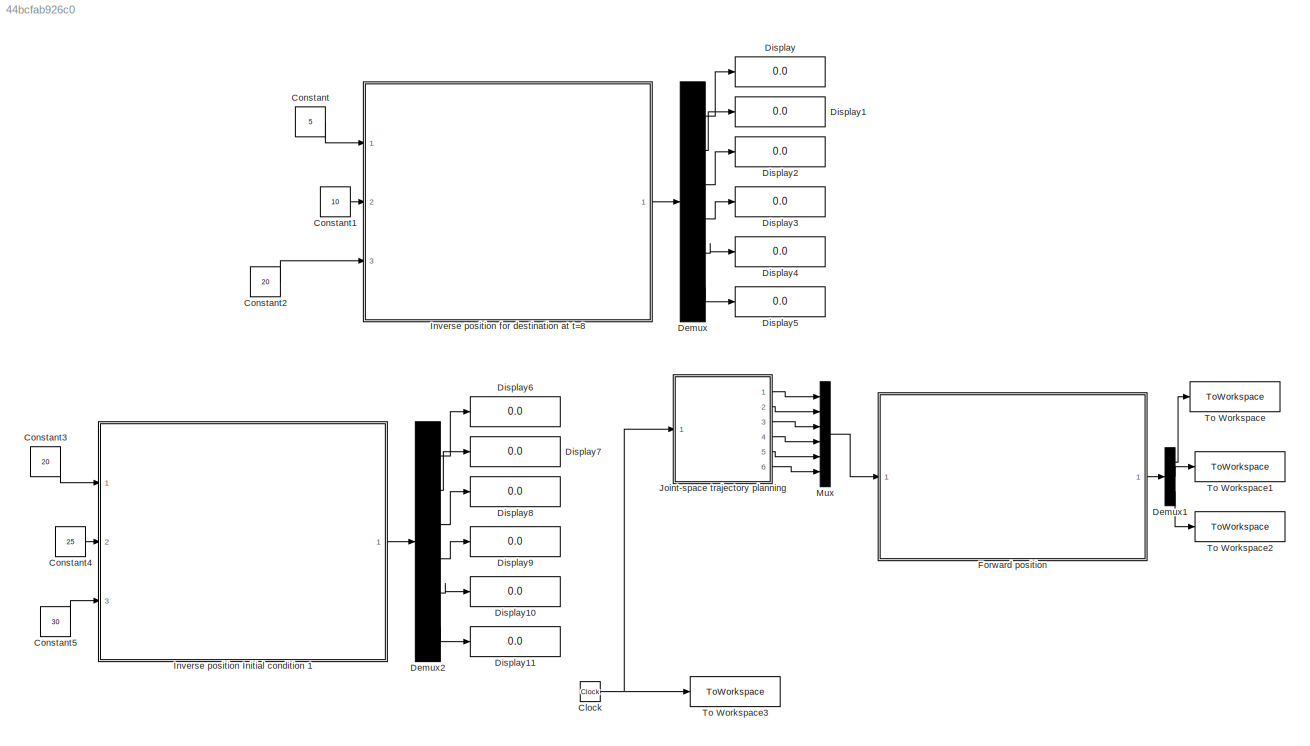
MODEL slx_44bcfab926c0
KIND model
CONFIG AbsTol = auto
CONFIG EnableMultiTasking = off
CONFIG FixedStep = 0.01
CONFIG MaxStep = auto
CONFIG MinStep = auto
CONFIG RelTol = 1e-3
CONFIG SampleTimeConstraint = Unconstrained
CONFIG Solver = FixedStepAuto
CONFIG SolverName = FixedStepAuto
CONFIG StartTime = 0.0
CONFIG StopTime = 8
BLOCK [Clock] Clock
BLOCK [Constant] Constant
  Value = 5
BLOCK [Constant] Constant1
  Value = 10
BLOCK [Constant] Constant2
  Value = 20
BLOCK [Constant] Constant3
  Value = 20
BLOCK [Constant] Constant4
  Value = 25
BLOCK [Constant] Constant5
  Value = 30
BLOCK [Demux] Demux
  DisplayOption = bar
  Outputs = 6
  Ports = [1, 6]
BLOCK [Demux] Demux1
  DisplayOption = bar
  Outputs = 3
  Ports = [1, 3]
BLOCK [Demux] Demux2
  DisplayOption = bar
  Outputs = 6
  Ports = [1, 6]
BLOCK [Display] Display
  Decimation = 1
  Ports = [1]
BLOCK [Display] Display1
  Decimation = 1
  Ports = [1]
BLOCK [Display] Display10
  Decimation = 1
  Ports = [1]
BLOCK [Display] Display11
  Decimation = 1
  Ports = [1]
BLOCK [Display] Display2
  Decimation = 1
  Ports = [1]
BLOCK [Display] Display3
  Decimation = 1
  Ports = [1]
BLOCK [Display] Display4
  Decimation = 1
  Ports = [1]
BLOCK [Display] Display5
  Decimation = 1
  Ports = [1]
BLOCK [Display] Display6
  Decimation = 1
  Ports = [1]
BLOCK [Display] Display7
  Decimation = 1
  Ports = [1]
BLOCK [Display] Display8
  Decimation = 1
  Ports = [1]
BLOCK [Display] Display9
  Decimation = 1
  Ports = [1]
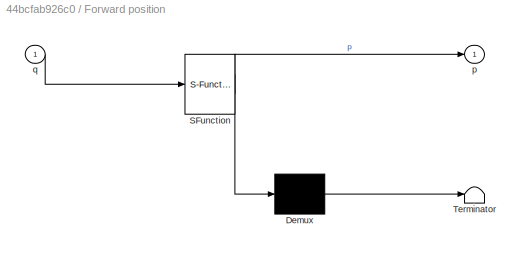
BLOCK [SubSystem] Forward position 
  ErrorFcn = Stateflow.Translate.translate
  PermitHierarchicalResolution = ExplicitOnly
  Ports = [1, 1]
  RequestExecContextInheritance = off
  SFBlockType = MATLAB Function
  TreatAsAtomicUnit = on
BLOCK [Demux] Forward position / Demux 
  Outputs = 1
  Ports = [1, 1]
BLOCK [S-Function] Forward position / SFunction 
  EnableBusSupport = on
  FunctionName = sf_sfun
  PortCounts = [1 2]
  Ports = [1, 2]
  SFcnIsStateOwnerBlock = off
  SFunctionDeploymentMode = off
  Tag = Stateflow S-Function 3
BLOCK [Terminator] Forward position / Terminator 
BLOCK [Outport] Forward position /p
  IconDisplay = Port number
  VectorParamsAs1DForOutWhenUnconnected = off
BLOCK [Inport] Forward position /q
  IconDisplay = Port number
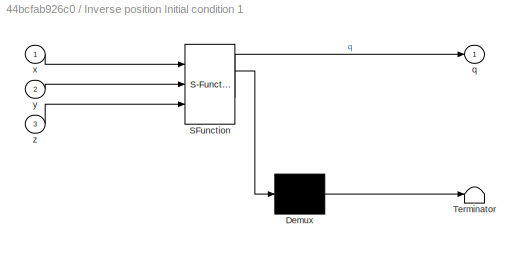
BLOCK [SubSystem] Inverse position Initial condition 1
  ErrorFcn = Stateflow.Translate.translate
  PermitHierarchicalResolution = ExplicitOnly
  Ports = [3, 1]
  RequestExecContextInheritance = off
  SFBlockType = MATLAB Function
  TreatAsAtomicUnit = on
BLOCK [Demux] Inverse position Initial condition 1/ Demux 
  Outputs = 1
  Ports = [1, 1]
BLOCK [S-Function] Inverse position Initial condition 1/ SFunction 
  EnableBusSupport = on
  FunctionName = sf_sfun
  PortCounts = [3 2]
  Ports = [3, 2]
  SFcnIsStateOwnerBlock = off
  SFunctionDeploymentMode = off
  Tag = Stateflow S-Function 4
BLOCK [Terminator] Inverse position Initial condition 1/ Terminator 
BLOCK [Outport] Inverse position Initial condition 1/q
  IconDisplay = Port number
  VectorParamsAs1DForOutWhenUnconnected = off
BLOCK [Inport] Inverse position Initial condition 1/x
  IconDisplay = Port number
BLOCK [Inport] Inverse position Initial condition 1/y
  IconDisplay = Port number
  Port = 2
BLOCK [Inport] Inverse position Initial condition 1/z
  IconDisplay = Port number
  Port = 3
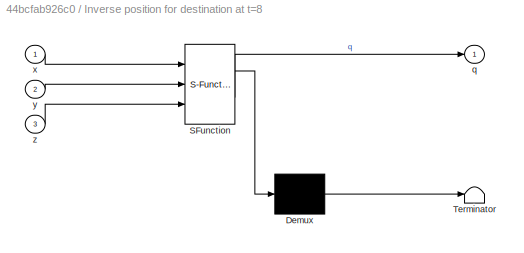
BLOCK [SubSystem] Inverse position for destination at t=8 
  ErrorFcn = Stateflow.Translate.translate
  PermitHierarchicalResolution = ExplicitOnly
  Ports = [3, 1]
  RequestExecContextInheritance = off
  SFBlockType = MATLAB Function
  TreatAsAtomicUnit = on
BLOCK [Demux] Inverse position for destination at t=8 / Demux 
  Outputs = 1
  Ports = [1, 1]
BLOCK [S-Function] Inverse position for destination at t=8 / SFunction 
  EnableBusSupport = on
  FunctionName = sf_sfun
  PortCounts = [3 2]
  Ports = [3, 2]
  SFcnIsStateOwnerBlock = off
  SFunctionDeploymentMode = off
  Tag = Stateflow S-Function 1
BLOCK [Terminator] Inverse position for destination at t=8 / Terminator 
BLOCK [Outport] Inverse position for destination at t=8 /q
  IconDisplay = Port number
  VectorParamsAs1DForOutWhenUnconnected = off
BLOCK [Inport] Inverse position for destination at t=8 /x
  IconDisplay = Port number
BLOCK [Inport] Inverse position for destination at t=8 /y
  IconDisplay = Port number
  Port = 2
BLOCK [Inport] Inverse position for destination at t=8 /z
  IconDisplay = Port number
  Port = 3
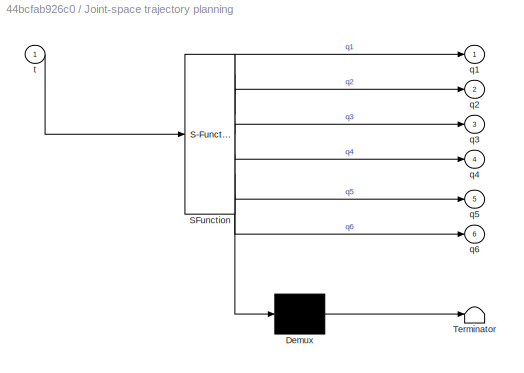
BLOCK [SubSystem] Joint-space trajectory planning 
  ErrorFcn = Stateflow.Translate.translate
  PermitHierarchicalResolution = ExplicitOnly
  Ports = [1, 6]
  RequestExecContextInheritance = off
  SFBlockType = MATLAB Function
  TreatAsAtomicUnit = on
BLOCK [Demux] Joint-space trajectory planning / Demux 
  Outputs = 1
  Ports = [1, 1]
BLOCK [S-Function] Joint-space trajectory planning / SFunction 
  EnableBusSupport = on
  FunctionName = sf_sfun
  PortCounts = [1 7]
  Ports = [1, 7]
  SFcnIsStateOwnerBlock = off
  SFunctionDeploymentMode = off
  Tag = Stateflow S-Function 2
BLOCK [Terminator] Joint-space trajectory planning / Terminator 
BLOCK [Outport] Joint-space trajectory planning /q1
  IconDisplay = Port number
BLOCK [Outport] Joint-space trajectory planning /q2
  IconDisplay = Port number
  Port = 2
BLOCK [Outport] Joint-space trajectory planning /q3
  IconDisplay = Port number
  Port = 3
BLOCK [Outport] Joint-space trajectory planning /q4
  IconDisplay = Port number
  Port = 4
BLOCK [Outport] Joint-space trajectory planning /q5
  IconDisplay = Port number
  Port = 5
BLOCK [Outport] Joint-space trajectory planning /q6
  IconDisplay = Port number
  Port = 6
BLOCK [Inport] Joint-space trajectory planning /t
  IconDisplay = Port number
BLOCK [Mux] Mux
  DisplayOption = bar
  Inputs = 6
  Ports = [6, 1]
BLOCK [ToWorkspace] To Workspace
  FixptAsFi = on
  MaxDataPoints = inf
  Ports = [1]
  SampleTime = -1
  VariableName = x
BLOCK [ToWorkspace] To Workspace1
  FixptAsFi = on
  MaxDataPoints = inf
  Ports = [1]
  SampleTime = -1
  VariableName = y
BLOCK [ToWorkspace] To Workspace2
  FixptAsFi = on
  MaxDataPoints = inf
  Ports = [1]
  SampleTime = -1
  VariableName = z
BLOCK [ToWorkspace] To Workspace3
  FixptAsFi = on
  MaxDataPoints = inf
  Ports = [1]
  SampleTime = -1
  VariableName = t
NET Clock:1 -> Joint-space trajectory planning :1, To Workspace3:1
LINE Constant1:1 -> Inverse position for destination at t=8 :2
LINE Constant2:1 -> Inverse position for destination at t=8 :3
LINE Constant3:1 -> Inverse position Initial condition 1:1
LINE Constant4:1 -> Inverse position Initial condition 1:2
LINE Constant5:1 -> Inverse position Initial condition 1:3
LINE Constant:1 -> Inverse position for destination at t=8 :1
LINE Demux1:1 -> To Workspace:1
LINE Demux1:2 -> To Workspace1:1
LINE Demux1:3 -> To Workspace2:1
LINE Demux2:1 -> Display6:1
LINE Demux2:2 -> Display7:1
LINE Demux2:3 -> Display8:1
LINE Demux2:4 -> Display9:1
LINE Demux2:5 -> Display10:1
LINE Demux2:6 -> Display11:1
LINE Demux:1 -> Display:1
LINE Demux:2 -> Display1:1
LINE Demux:3 -> Display2:1
LINE Demux:4 -> Display3:1
LINE Demux:5 -> Display4:1
LINE Demux:6 -> Display5:1
LINE Forward position :1 -> Demux1:1
LINE Inverse position Initial condition 1:1 -> Demux2:1
LINE Inverse position for destination at t=8 :1 -> Demux:1
LINE Joint-space trajectory planning :1 -> Mux:1
LINE Joint-space trajectory planning :2 -> Mux:2
LINE Joint-space trajectory planning :3 -> Mux:3
LINE Joint-space trajectory planning :4 -> Mux:4
LINE Joint-space trajectory planning :5 -> Mux:5
LINE Joint-space trajectory planning :6 -> Mux:6
LINE Mux:1 -> Forward position :1
note: NET lines group one-source signal fan-out (src -> all destinations, sorted); 1:1 wires keep LINE
CHART Inverse position for destination at t=8
 states=1 transitions=1
  STATE_LABEL 'eML_blk_kernel()'
  STATE_LABEL 'SCRIPT:\nfunction q   = fcn(x, y, z)\n\nqnew=[0;0;0;0;0;0];\nqold=[50;50;50;50;50;50];\n\ni=100;\ndog=true;\n\nwhile (i>0 && dog)\n    q1=qold(1,1);\n    q2=qold(2,1);\n    q3=qold(3,1);\n    q4=qold(4,1);\n    q5=qold(5,1);\n    q6=qold(6,1);\n    \n    F= [ 10*cos((pi*(q1 - 90))/180)*sin((pi*(q2 - 90))/180) - 10*sin((pi*(q5 + 90))/180)*(sin((pi*(q1 - 90))/180)*sin((pi*(q4 + 90))/180) - cos((pi*(q1 - 90))/180)*co...<+3608ch>'
CHART Joint-space trajectory planning
 states=1 transitions=1
  STATE_LABEL 'eML_blk_kernel()'
  STATE_LABEL 'SCRIPT:\nfunction [q1,q2,q3,q4,q5,q6] = fcn(t)\n\nq1= -21.89 + 1.75125*t^(2) - 0.146*t^(3);\nq2= 38.51 + 1.415*t^(2) -0.118*t^(3);\nq3= 14.89 + -1.30125*t^(2) + 0.1084375*t^(3);\nq4= 20.75 + 0.3740526*t^(2) - 0.031171875*t^(3);\nq5= 8.891 + 1.0542*t^(2) - 0.0878*t^(3);\nq6=0;\n\n'
CHART Forward position
 states=1 transitions=1
  STATE_LABEL 'eML_blk_kernel()'
  STATE_LABEL 'SCRIPT:\nfunction p  = fcn(q)\nq1= q(1);\nq2= q(2);\nq3= q(3);\nq4= q(4);\nq5= q(5);\nq6= q(6);\nL1=10;\nL2=10;\nL3=10;\nL4=10;\npp= [ sin((pi*q6)/180)*(cos((pi*(q4 + 90))/180)*sin((pi*(q1 - 90))/180) + cos((pi*(q1 - 90))/180)*cos((pi*(q2 - 90))/180)*sin((pi*(q4 + 90))/180)) - cos((pi*q6)/180)*(cos((pi*(q5 + 90))/180)*(sin((pi*(q1 - 90))/180)*sin((pi*(q4 + 90))/180) - cos((pi*(q1 - 90))/180)*cos((pi*(q2 - 90)...<+3608ch>'
CHART Inverse position Initial condition
1 states=1 transitions=1
  STATE_LABEL 'eML_blk_kernel()'
  STATE_LABEL 'SCRIPT:\nfunction q   = fcn(x, y, z)\n\nqnew=[0;0;0;0;0;0];\nqold=[50;50;50;50;50;50];\n\ni=100;\ndog=true;\n\nwhile (i>0 && dog)\n    q1=qold(1,1);\n    q2=qold(2,1);\n    q3=qold(3,1);\n    q4=qold(4,1);\n    q5=qold(5,1);\n    q6=qold(6,1);\n    \n    F= [ 10*cos((pi*(q1 - 90))/180)*sin((pi*(q2 - 90))/180) - 10*sin((pi*(q5 + 90))/180)*(sin((pi*(q1 - 90))/180)*sin((pi*(q4 + 90))/180) - cos((pi*(q1 - 90))/180)*co...<+3608ch>'
